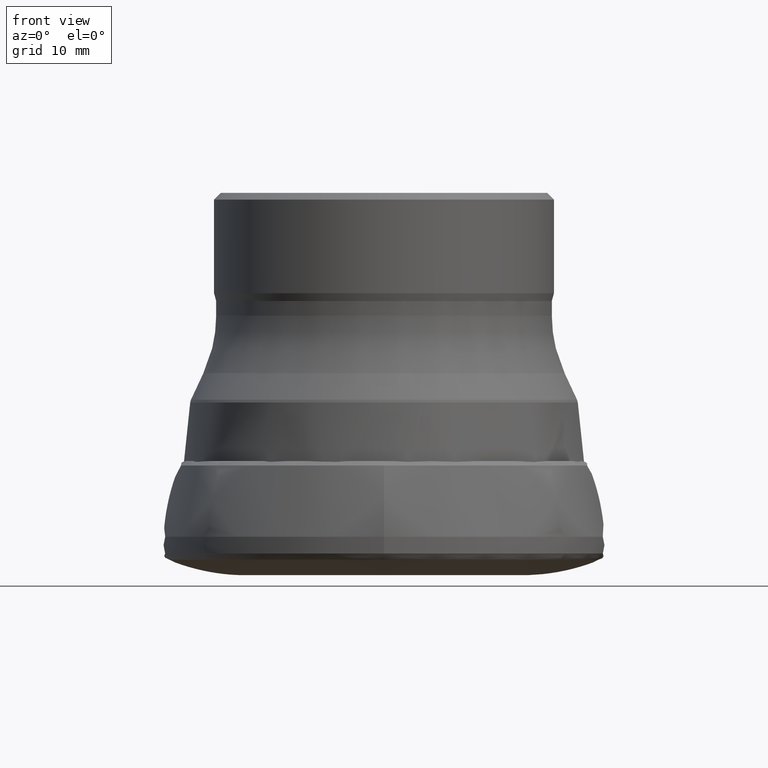
[diagram: clean part render]
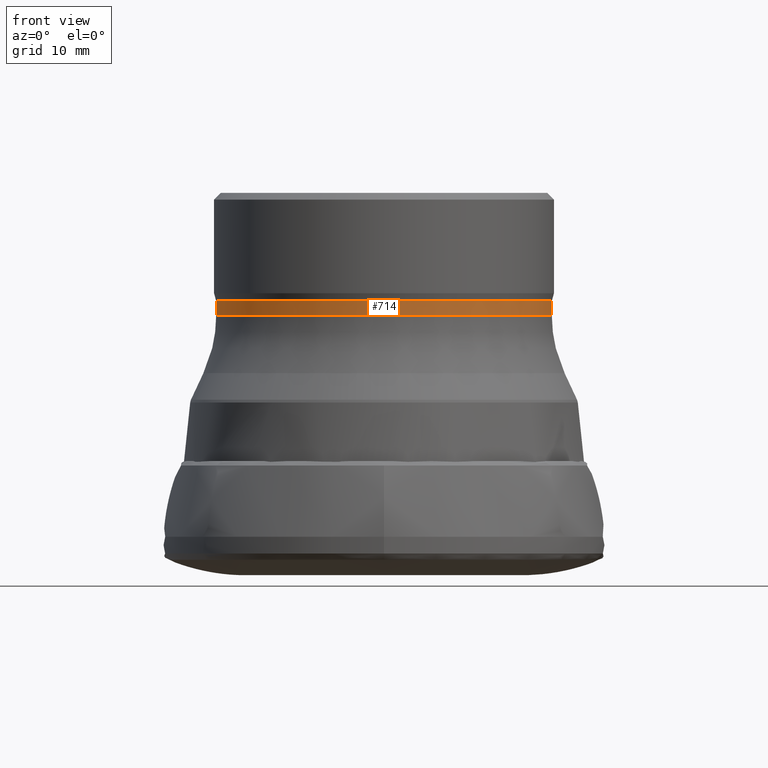
[diagram: same view with one face highlighted and labeled with its STEP entity id]
A machine part, front view. The second image highlights one B-rep face of the part: STEP entity #714.
In plain terms, the highlighted cylindrical surface (bore or boss wall) has radius 19.75 mm, axis along (0, 0, -1).
Its self-contained STEP definition (entity closure, byte-faithful):
#20 = DIRECTION ( 'NONE',  ( 1.000000000000000000, 0.0000000000000000000, 0.0000000000000000000 ) ) ;
#120 = VERTEX_POINT ( 'NONE', #2708 ) ;
#197 = CARTESIAN_POINT ( 'NONE',  ( 0.0000000000000000000, 0.0000000000000000000, -5.271374679283679800 ) ) ;
#254 = VERTEX_POINT ( 'NONE', #911 ) ;
#262 = FACE_OUTER_BOUND ( 'NONE', #892, .T. ) ;
#371 = DIRECTION ( 'NONE',  ( -0.0000000000000000000, -0.0000000000000000000, 1.000000000000000000 ) ) ;
#403 = EDGE_CURVE ( 'NONE', #254, #254, #2412, .T. ) ;
#432 = FACE_OUTER_BOUND ( 'NONE', #1403, .T. ) ;
#714 = ADVANCED_FACE ( 'NONE', ( #432, #262 ), #1023, .T. ) ;
#752 = AXIS2_PLACEMENT_3D ( 'NONE', #197, #371, #2733 ) ;
#834 = AXIS2_PLACEMENT_3D ( 'NONE', #2640, #2487, #20 ) ;
#892 = EDGE_LOOP ( 'NONE', ( #1478 ) ) ;
#911 = CARTESIAN_POINT ( 'NONE',  ( 19.75000000001966400, 0.0000000000000000000, -32.26685608509973900 ) ) ;
#1023 = CYLINDRICAL_SURFACE ( 'NONE', #752, 19.75000000000555600 ) ;
#1071 = ORIENTED_EDGE ( 'NONE', *, *, #1542, .F. ) ;
#1139 = CIRCLE ( 'NONE', #1828, 19.74999999999144500 ) ;
#1403 = EDGE_LOOP ( 'NONE', ( #1071 ) ) ;
#1478 = ORIENTED_EDGE ( 'NONE', *, *, #403, .T. ) ;
#1542 = EDGE_CURVE ( 'NONE', #120, #120, #1139, .T. ) ;
#1828 = AXIS2_PLACEMENT_3D ( 'NONE', #2585, #2225, #2599 ) ;
#2225 = DIRECTION ( 'NONE',  ( -0.0000000000000000000, -0.0000000000000000000, 1.000000000000000000 ) ) ;
#2412 = CIRCLE ( 'NONE', #834, 19.75000000001966400 ) ;
#2487 = DIRECTION ( 'NONE',  ( -0.0000000000000000000, -0.0000000000000000000, 1.000000000000000000 ) ) ;
#2585 = CARTESIAN_POINT ( 'NONE',  ( 0.0000000000000000000, 0.0000000000000000000, -30.55689003108014400 ) ) ;
#2599 = DIRECTION ( 'NONE',  ( 1.000000000000000000, 0.0000000000000000000, 0.0000000000000000000 ) ) ;
#2640 = CARTESIAN_POINT ( 'NONE',  ( 0.0000000000000000000, 0.0000000000000000000, -32.26685608509973900 ) ) ;
#2708 = CARTESIAN_POINT ( 'NONE',  ( 19.74999999999144500, 0.0000000000000000000, -30.55689003108014400 ) ) ;
#2733 = DIRECTION ( 'NONE',  ( 1.000000000000000000, 0.0000000000000000000, 0.0000000000000000000 ) ) ;